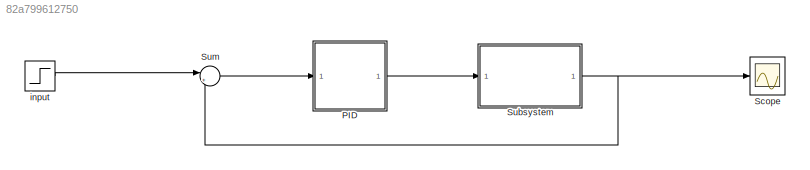
MODEL slx_82a799612750
KIND model
CONFIG AbsTol = auto
CONFIG EnableMultiTasking = off
CONFIG FixedStep = auto
CONFIG MaxStep = auto
CONFIG MinStep = auto
CONFIG RelTol = 1e-3
CONFIG SampleTimeConstraint = Unconstrained
CONFIG Solver = ode15s
CONFIG SolverName = ode15s
CONFIG StartTime = 0.0
CONFIG StopTime = 0.2
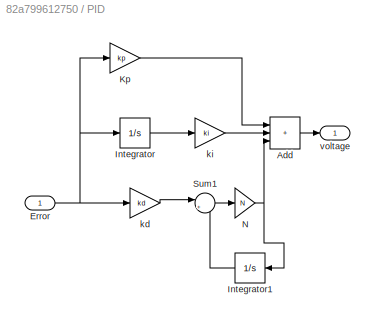
BLOCK [SubSystem] PID
  Ports = [1, 1]
  RequestExecContextInheritance = off
BLOCK [Sum] PID/Add
  IconShape = rectangular
  Inputs = +++
  Ports = [3, 1]
BLOCK [Inport] PID/Error
BLOCK [Integrator] PID/Integrator
  Ports = [1, 1]
BLOCK [Integrator] PID/Integrator1
  NameLocation = top
  Ports = [1, 1]
BLOCK [Gain] PID/Kp
  Gain = kp
BLOCK [Gain] PID/N
  Gain = N
BLOCK [Sum] PID/Sum1
  Inputs = |+-
  Ports = [2, 1]
BLOCK [Gain] PID/kd
  Gain = kd
BLOCK [Gain] PID/ki
  Gain = ki
BLOCK [Outport] PID/voltage
BLOCK [Scope] Scope
  Floating = off
  NumInputPorts = 1
  Ports = [1]
  ScopeSpecificationString = Simulink.scopes.TimeScopeBlockCfg('CurrentConfiguration', extmgr.ConfigurationSet(extmgr.Configuration('Core','General UI',true),extmgr.Configuration('Core','Source UI',true),extmgr.Configuration('Sources','WiredSimulink',true,'DataLoggingSaveFormat','Array','DataLoggingLimitDataPoints',true,'DataLoggingDecimation','1'),extmgr.Configuration('Visuals','Time Domain',true,'SerializedDisplays',{struct...<+1643ch>
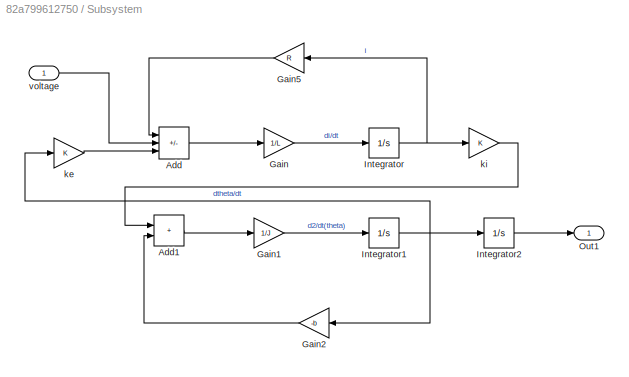
BLOCK [SubSystem] Subsystem
  Ports = [1, 1]
  RequestExecContextInheritance = off
BLOCK [Sum] Subsystem/Add
  IconShape = rectangular
  Inputs = -+-
  Ports = [3, 1]
BLOCK [Sum] Subsystem/Add1
  IconShape = rectangular
  Ports = [2, 1]
BLOCK [Gain] Subsystem/Gain
  Gain = 1/L
BLOCK [Gain] Subsystem/Gain1
  Gain = 1/J
BLOCK [Gain] Subsystem/Gain2
  Gain = -b
  NameLocation = top
BLOCK [Gain] Subsystem/Gain5
  Gain = R
  NameLocation = top
BLOCK [Integrator] Subsystem/Integrator
  Ports = [1, 1]
BLOCK [Integrator] Subsystem/Integrator1
  Ports = [1, 1]
BLOCK [Integrator] Subsystem/Integrator2
  Ports = [1, 1]
BLOCK [Outport] Subsystem/Out1
BLOCK [Gain] Subsystem/ke
  Gain = K
BLOCK [Gain] Subsystem/ki
  Gain = K
BLOCK [Inport] Subsystem/voltage
BLOCK [Sum] Sum
  Inputs = |+-
  Ports = [2, 1]
BLOCK [Step] input
  SampleTime = 0
  Time = 0
LINE PID/Add:1 -> PID/voltage:1
NET PID/Error:1 -> PID/Integrator:1, PID/Kp:1, PID/kd:1
LINE PID/Integrator1:1 -> PID/Sum1:2
LINE PID/Integrator:1 -> PID/ki:1
LINE PID/Kp:1 -> PID/Add:1
NET PID/N:1 -> PID/Add:3, PID/Integrator1:1
LINE PID/Sum1:1 -> PID/N:1
LINE PID/kd:1 -> PID/Sum1:1
LINE PID/ki:1 -> PID/Add:2
LINE PID:1 -> Subsystem:1
LINE Subsystem/Add1:1 -> Subsystem/Gain1:1
LINE Subsystem/Add:1 -> Subsystem/Gain:1
LINE Subsystem/Gain1:1 -> Subsystem/Integrator1:1
LINE Subsystem/Gain2:1 -> Subsystem/Add1:2
LINE Subsystem/Gain5:1 -> Subsystem/Add:1
LINE Subsystem/Gain:1 -> Subsystem/Integrator:1
NET Subsystem/Integrator1:1 -> Subsystem/Gain2:1, Subsystem/Integrator2:1, Subsystem/ke:1
LINE Subsystem/Integrator2:1 -> Subsystem/Out1:1
NET Subsystem/Integrator:1 -> Subsystem/Gain5:1, Subsystem/ki:1
LINE Subsystem/ke:1 -> Subsystem/Add:3
LINE Subsystem/ki:1 -> Subsystem/Add1:1
LINE Subsystem/voltage:1 -> Subsystem/Add:2
NET Subsystem:1 -> Scope:1, Sum:2
LINE Sum:1 -> PID:1
LINE input:1 -> Sum:1
note: NET lines group one-source signal fan-out (src -> all destinations, sorted); 1:1 wires keep LINE
